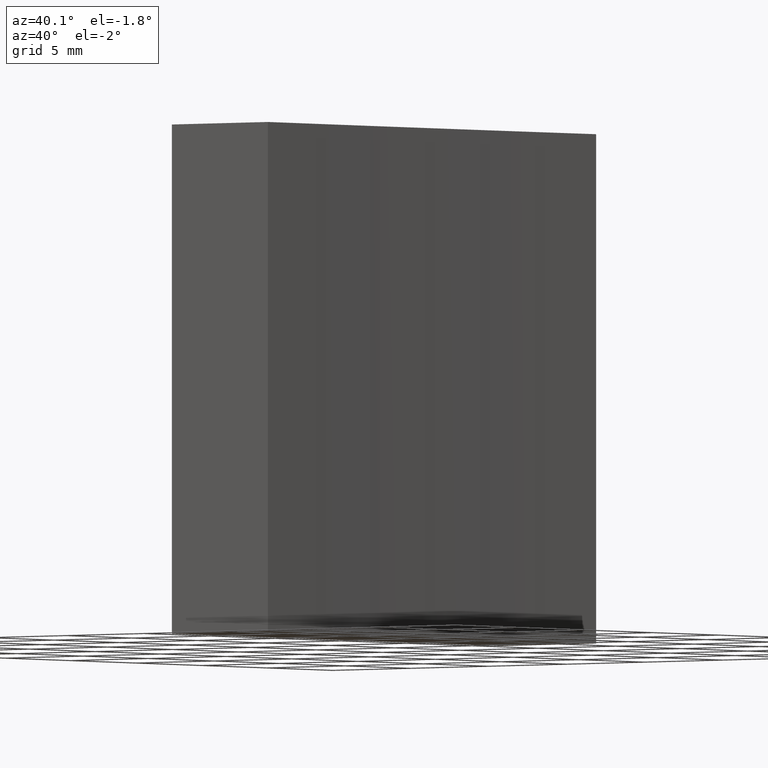
[diagram: clean part render]
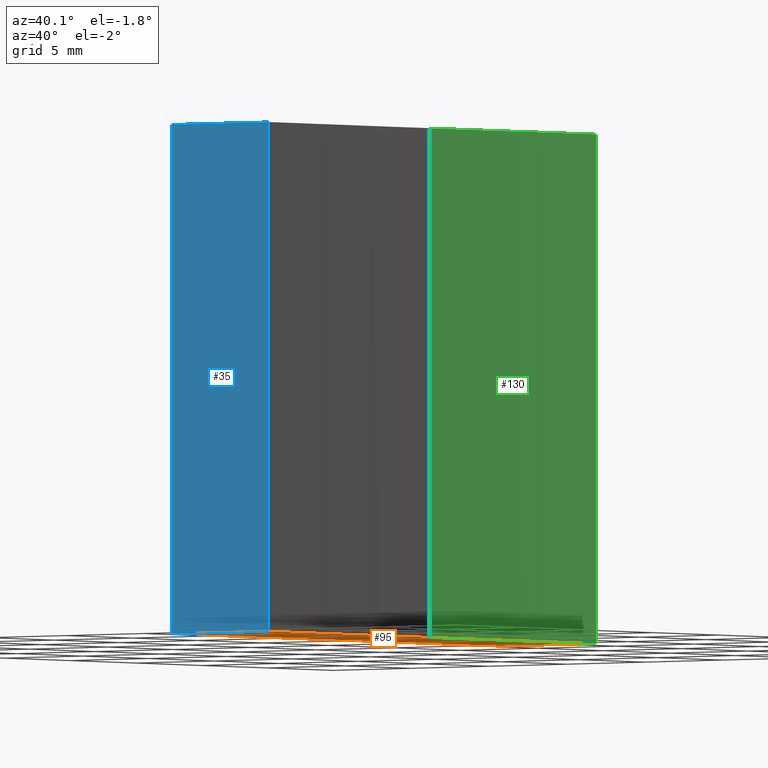
[diagram: same view with three faces highlighted in distinct colors, each labeled with its STEP entity id]
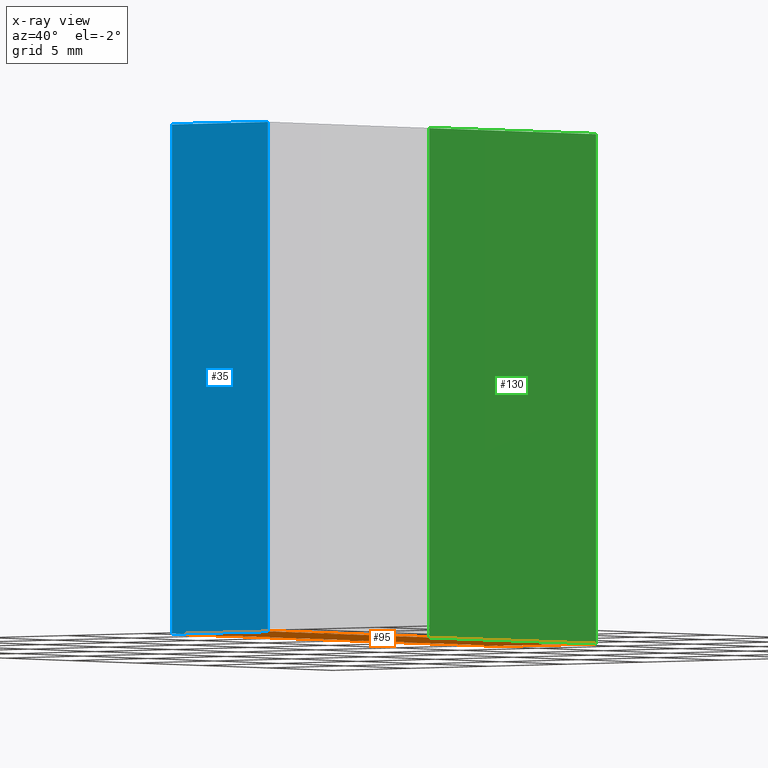
[diagram: x-ray of the same camera — body ghosted, the three highlighted faces saturated]
A machine part, auxiliary view with three faces highlighted in distinct colors.
The next image is the same camera in x-ray (body ghosted, the three faces saturated) — at least one of them is partly hidden behind the body in this view.
Their STEP definitions:

[orange] entity #95 — the highlighted planar face has unit normal (0, 0, 1).
#5 = VECTOR ( 'NONE', #186, 1000.000000000000000 ) ;
#7 = EDGE_CURVE ( 'NONE', #27, #182, #105, .T. ) ;
#14 = EDGE_CURVE ( 'NONE', #182, #213, #148, .T. ) ;
#24 = VERTEX_POINT ( 'NONE', #170 ) ;
#27 = VERTEX_POINT ( 'NONE', #104 ) ;
#34 = DIRECTION ( 'NONE',  ( -1.000000000000000000, -0.0000000000000000000, -0.0000000000000000000 ) ) ;
#40 = CARTESIAN_POINT ( 'NONE',  ( 284.7071356312820900, 66.85792926776707600, 0.0000000000000000000 ) ) ;
#45 = CARTESIAN_POINT ( 'NONE',  ( 290.8634100413992800, 54.35792926776753800, 0.0000000000000000000 ) ) ;
#54 = ORIENTED_EDGE ( 'NONE', *, *, #14, .F. ) ;
#55 = CARTESIAN_POINT ( 'NONE',  ( 290.8634100413992800, 54.35792926776736100, 0.0000000000000000000 ) ) ;
#58 = LINE ( 'NONE', #40, #159 ) ;
#63 = ORIENTED_EDGE ( 'NONE', *, *, #98, .F. ) ;
#68 = FACE_OUTER_BOUND ( 'NONE', #99, .T. ) ;
#72 = VECTOR ( 'NONE', #34, 1000.000000000000000 ) ;
#76 = EDGE_CURVE ( 'NONE', #24, #156, #101, .T. ) ;
#77 = DIRECTION ( 'NONE',  ( -0.0000000000000000000, -1.000000000000000000, -0.0000000000000000000 ) ) ;
#78 = ORIENTED_EDGE ( 'NONE', *, *, #197, .F. ) ;
#88 = DIRECTION ( 'NONE',  ( -0.0000000000000000000, -0.0000000000000000000, -1.000000000000000000 ) ) ;
#93 = CIRCLE ( 'NONE', #187, 500.0000000000001100 ) ;
#95 = ADVANCED_FACE ( 'NONE', ( #68 ), #143, .F. ) ;
#98 = EDGE_CURVE ( 'NONE', #156, #27, #58, .T. ) ;
#99 = EDGE_LOOP ( 'NONE', ( #150, #63, #128, #78, #54 ) ) ;
#101 = LINE ( 'NONE', #190, #72 ) ;
#104 = CARTESIAN_POINT ( 'NONE',  ( 284.7071356312820900, 54.35792926776707600, 0.0000000000000000000 ) ) ;
#105 = LINE ( 'NONE', #55, #5 ) ;
#126 = AXIS2_PLACEMENT_3D ( 'NONE', #174, #232, #157 ) ;
#128 = ORIENTED_EDGE ( 'NONE', *, *, #76, .F. ) ;
#143 = PLANE ( 'NONE',  #126 ) ;
#147 = DIRECTION ( 'NONE',  ( -0.0000000000000000000, -0.0000000000000000000, -1.000000000000000000 ) ) ;
#148 = CIRCLE ( 'NONE', #151, 500.0000000000001100 ) ;
#150 = ORIENTED_EDGE ( 'NONE', *, *, #7, .F. ) ;
#151 = AXIS2_PLACEMENT_3D ( 'NONE', #209, #88, #205 ) ;
#156 = VERTEX_POINT ( 'NONE', #193 ) ;
#157 = DIRECTION ( 'NONE',  ( 1.000000000000000000, 0.0000000000000000000, -0.0000000000000000000 ) ) ;
#159 = VECTOR ( 'NONE', #77, 1000.000000000000000 ) ;
#165 = CARTESIAN_POINT ( 'NONE',  ( 790.7071356197045600, 66.85792926776608200, 0.0000000000000000000 ) ) ;
#170 = CARTESIAN_POINT ( 'NONE',  ( 290.8634100413993300, 79.35792926776707600, 0.0000000000000000000 ) ) ;
#174 = CARTESIAN_POINT ( 'NONE',  ( 790.7071356197045600, 66.85792926776608200, 0.0000000000000000000 ) ) ;
#178 = DIRECTION ( 'NONE',  ( 1.000000000000000000, 0.0000000000000000000, 0.0000000000000000000 ) ) ;
#182 = VERTEX_POINT ( 'NONE', #45 ) ;
#186 = DIRECTION ( 'NONE',  ( 1.000000000000000000, 4.621214570823220700E-014, -0.0000000000000000000 ) ) ;
#187 = AXIS2_PLACEMENT_3D ( 'NONE', #165, #147, #178 ) ;
#190 = CARTESIAN_POINT ( 'NONE',  ( 284.7071356312820900, 79.35792926776707600, 0.0000000000000000000 ) ) ;
#193 = CARTESIAN_POINT ( 'NONE',  ( 284.7071356312820900, 79.35792926776707600, 0.0000000000000000000 ) ) ;
#197 = EDGE_CURVE ( 'NONE', #213, #24, #93, .T. ) ;
#205 = DIRECTION ( 'NONE',  ( 1.000000000000000000, 0.0000000000000000000, 0.0000000000000000000 ) ) ;
#209 = CARTESIAN_POINT ( 'NONE',  ( 790.7071356197045600, 66.85792926776608200, 0.0000000000000000000 ) ) ;
#213 = VERTEX_POINT ( 'NONE', #214 ) ;
#214 = CARTESIAN_POINT ( 'NONE',  ( 290.7071356197043900, 66.85792926776608200, 0.0000000000000000000 ) ) ;
#232 = DIRECTION ( 'NONE',  ( 0.0000000000000000000, 0.0000000000000000000, 1.000000000000000000 ) ) ;

[blue] entity #35 — the highlighted planar face has unit normal (-0, 1, 0).
#2 = LINE ( 'NONE', #37, #69 ) ;
#5 = VECTOR ( 'NONE', #186, 1000.000000000000000 ) ;
#6 = VECTOR ( 'NONE', #162, 1000.000000000000000 ) ;
#7 = EDGE_CURVE ( 'NONE', #27, #182, #105, .T. ) ;
#8 = ORIENTED_EDGE ( 'NONE', *, *, #184, .F. ) ;
#10 = LINE ( 'NONE', #106, #112 ) ;
#12 = DIRECTION ( 'NONE',  ( -1.000000000000000000, -4.621214570823221300E-014, 0.0000000000000000000 ) ) ;
#20 = CARTESIAN_POINT ( 'NONE',  ( 290.8634100413992800, 54.35792926776753800, 25.00000000000000000 ) ) ;
#23 = ORIENTED_EDGE ( 'NONE', *, *, #56, .T. ) ;
#27 = VERTEX_POINT ( 'NONE', #104 ) ;
#31 = VERTEX_POINT ( 'NONE', #71 ) ;
#35 = ADVANCED_FACE ( 'NONE', ( #175 ), #171, .F. ) ;
#37 = CARTESIAN_POINT ( 'NONE',  ( 284.7071356312820900, 54.35792926776707600, 25.00000000000000000 ) ) ;
#45 = CARTESIAN_POINT ( 'NONE',  ( 290.8634100413992800, 54.35792926776753800, 0.0000000000000000000 ) ) ;
#47 = EDGE_LOOP ( 'NONE', ( #207, #8, #51, #23 ) ) ;
#51 = ORIENTED_EDGE ( 'NONE', *, *, #92, .F. ) ;
#55 = CARTESIAN_POINT ( 'NONE',  ( 290.8634100413992800, 54.35792926776736100, 0.0000000000000000000 ) ) ;
#56 = EDGE_CURVE ( 'NONE', #31, #27, #2, .T. ) ;
#57 = DIRECTION ( 'NONE',  ( -0.0000000000000000000, -0.0000000000000000000, -1.000000000000000000 ) ) ;
#69 = VECTOR ( 'NONE', #57, 1000.000000000000000 ) ;
#71 = CARTESIAN_POINT ( 'NONE',  ( 284.7071356312820900, 54.35792926776707600, 25.00000000000000000 ) ) ;
#92 = EDGE_CURVE ( 'NONE', #31, #135, #10, .T. ) ;
#104 = CARTESIAN_POINT ( 'NONE',  ( 284.7071356312820900, 54.35792926776707600, 0.0000000000000000000 ) ) ;
#105 = LINE ( 'NONE', #55, #5 ) ;
#106 = CARTESIAN_POINT ( 'NONE',  ( 290.8634100413992800, 54.35792926776736100, 25.00000000000000000 ) ) ;
#112 = VECTOR ( 'NONE', #230, 1000.000000000000000 ) ;
#135 = VERTEX_POINT ( 'NONE', #216 ) ;
#162 = DIRECTION ( 'NONE',  ( -0.0000000000000000000, -0.0000000000000000000, -1.000000000000000000 ) ) ;
#169 = CARTESIAN_POINT ( 'NONE',  ( 290.8634100413992800, 54.35792926776736100, 25.00000000000000000 ) ) ;
#171 = PLANE ( 'NONE',  #226 ) ;
#175 = FACE_OUTER_BOUND ( 'NONE', #47, .T. ) ;
#182 = VERTEX_POINT ( 'NONE', #45 ) ;
#184 = EDGE_CURVE ( 'NONE', #135, #182, #194, .T. ) ;
#186 = DIRECTION ( 'NONE',  ( 1.000000000000000000, 4.621214570823220700E-014, -0.0000000000000000000 ) ) ;
#194 = LINE ( 'NONE', #20, #6 ) ;
#207 = ORIENTED_EDGE ( 'NONE', *, *, #7, .T. ) ;
#216 = CARTESIAN_POINT ( 'NONE',  ( 290.8634100413992800, 54.35792926776753800, 25.00000000000000000 ) ) ;
#226 = AXIS2_PLACEMENT_3D ( 'NONE', #169, #229, #12 ) ;
#229 = DIRECTION ( 'NONE',  ( -4.621214570823221300E-014, 1.000000000000000000, 0.0000000000000000000 ) ) ;
#230 = DIRECTION ( 'NONE',  ( 1.000000000000000000, 4.621214570823220700E-014, -0.0000000000000000000 ) ) ;

[green] entity #130 — the highlighted cylindrical surface (partial cylindrical patch) has radius 500 mm, axis along (-0, -0, -1).
#17 = CARTESIAN_POINT ( 'NONE',  ( 790.7071356197045600, 66.85792926776608200, 25.00000000000000000 ) ) ;
#18 = DIRECTION ( 'NONE',  ( -1.000000000000000000, 0.0000000000000000000, 0.0000000000000000000 ) ) ;
#24 = VERTEX_POINT ( 'NONE', #170 ) ;
#29 = LINE ( 'NONE', #145, #97 ) ;
#32 = CARTESIAN_POINT ( 'NONE',  ( 290.8634100413993300, 79.35792926776707600, 25.00000000000000000 ) ) ;
#38 = ORIENTED_EDGE ( 'NONE', *, *, #233, .T. ) ;
#42 = DIRECTION ( 'NONE',  ( -0.0000000000000000000, -0.0000000000000000000, -1.000000000000000000 ) ) ;
#49 = EDGE_CURVE ( 'NONE', #199, #102, #134, .T. ) ;
#60 = DIRECTION ( 'NONE',  ( -0.0000000000000000000, -0.0000000000000000000, -1.000000000000000000 ) ) ;
#61 = CARTESIAN_POINT ( 'NONE',  ( 790.7071356197045600, 66.85792926776608200, 25.00000000000000000 ) ) ;
#64 = CARTESIAN_POINT ( 'NONE',  ( 290.7071356197043900, 66.85792926776608200, 25.00000000000000000 ) ) ;
#84 = EDGE_LOOP ( 'NONE', ( #235, #38, #122, #189 ) ) ;
#85 = AXIS2_PLACEMENT_3D ( 'NONE', #61, #142, #18 ) ;
#93 = CIRCLE ( 'NONE', #187, 500.0000000000001100 ) ;
#97 = VECTOR ( 'NONE', #42, 1000.000000000000000 ) ;
#102 = VERTEX_POINT ( 'NONE', #32 ) ;
#114 = CARTESIAN_POINT ( 'NONE',  ( 290.7071356197043900, 66.85792926776608200, 25.00000000000000000 ) ) ;
#122 = ORIENTED_EDGE ( 'NONE', *, *, #197, .T. ) ;
#130 = ADVANCED_FACE ( 'NONE', ( #181 ), #201, .F. ) ;
#134 = CIRCLE ( 'NONE', #208, 500.0000000000001100 ) ;
#142 = DIRECTION ( 'NONE',  ( -0.0000000000000000000, -0.0000000000000000000, -1.000000000000000000 ) ) ;
#145 = CARTESIAN_POINT ( 'NONE',  ( 290.8634100413993300, 79.35792926776707600, 25.00000000000000000 ) ) ;
#147 = DIRECTION ( 'NONE',  ( -0.0000000000000000000, -0.0000000000000000000, -1.000000000000000000 ) ) ;
#165 = CARTESIAN_POINT ( 'NONE',  ( 790.7071356197045600, 66.85792926776608200, 0.0000000000000000000 ) ) ;
#168 = VECTOR ( 'NONE', #177, 1000.000000000000000 ) ;
#170 = CARTESIAN_POINT ( 'NONE',  ( 290.8634100413993300, 79.35792926776707600, 0.0000000000000000000 ) ) ;
#177 = DIRECTION ( 'NONE',  ( -0.0000000000000000000, -0.0000000000000000000, -1.000000000000000000 ) ) ;
#178 = DIRECTION ( 'NONE',  ( 1.000000000000000000, 0.0000000000000000000, 0.0000000000000000000 ) ) ;
#181 = FACE_OUTER_BOUND ( 'NONE', #84, .T. ) ;
#187 = AXIS2_PLACEMENT_3D ( 'NONE', #165, #147, #178 ) ;
#189 = ORIENTED_EDGE ( 'NONE', *, *, #210, .F. ) ;
#197 = EDGE_CURVE ( 'NONE', #213, #24, #93, .T. ) ;
#199 = VERTEX_POINT ( 'NONE', #114 ) ;
#201 = CYLINDRICAL_SURFACE ( 'NONE', #85, 500.0000000000001100 ) ;
#208 = AXIS2_PLACEMENT_3D ( 'NONE', #17, #60, #217 ) ;
#210 = EDGE_CURVE ( 'NONE', #102, #24, #29, .T. ) ;
#213 = VERTEX_POINT ( 'NONE', #214 ) ;
#214 = CARTESIAN_POINT ( 'NONE',  ( 290.7071356197043900, 66.85792926776608200, 0.0000000000000000000 ) ) ;
#217 = DIRECTION ( 'NONE',  ( 1.000000000000000000, 0.0000000000000000000, 0.0000000000000000000 ) ) ;
#233 = EDGE_CURVE ( 'NONE', #199, #213, #234, .T. ) ;
#234 = LINE ( 'NONE', #64, #168 ) ;
#235 = ORIENTED_EDGE ( 'NONE', *, *, #49, .F. ) ;